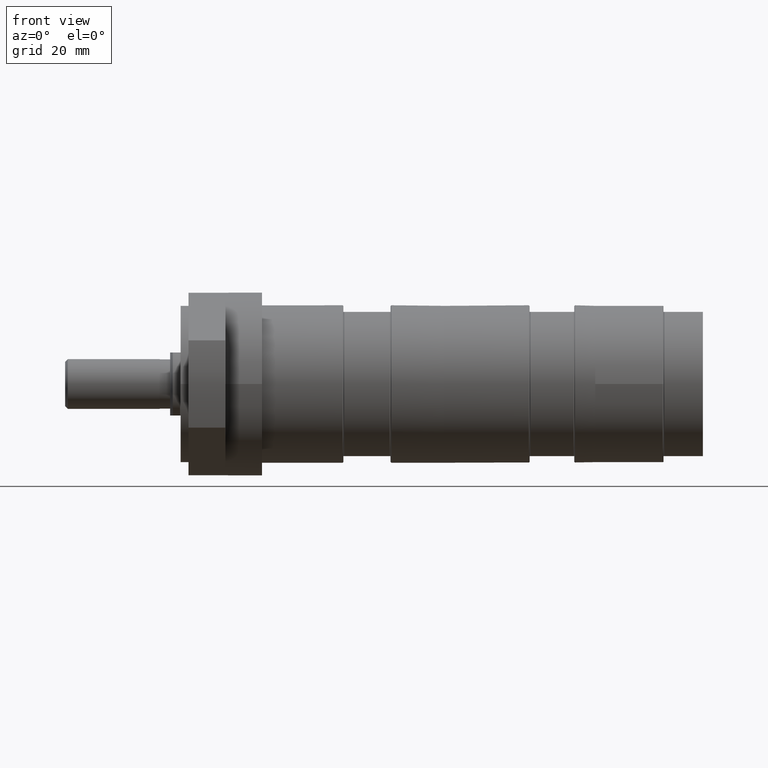
[diagram: clean part render]
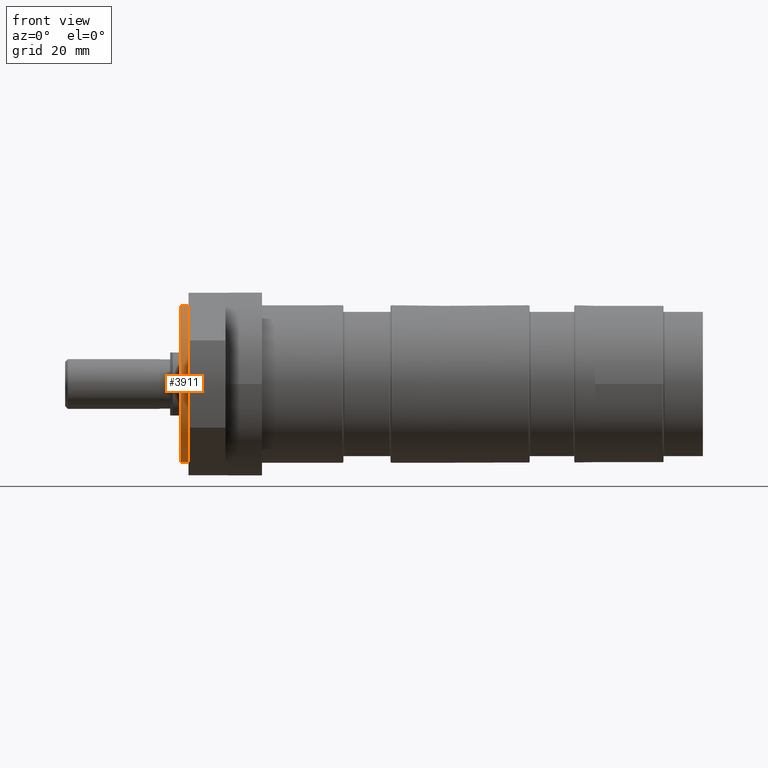
[diagram: same view with one face highlighted and labeled with its STEP entity id]
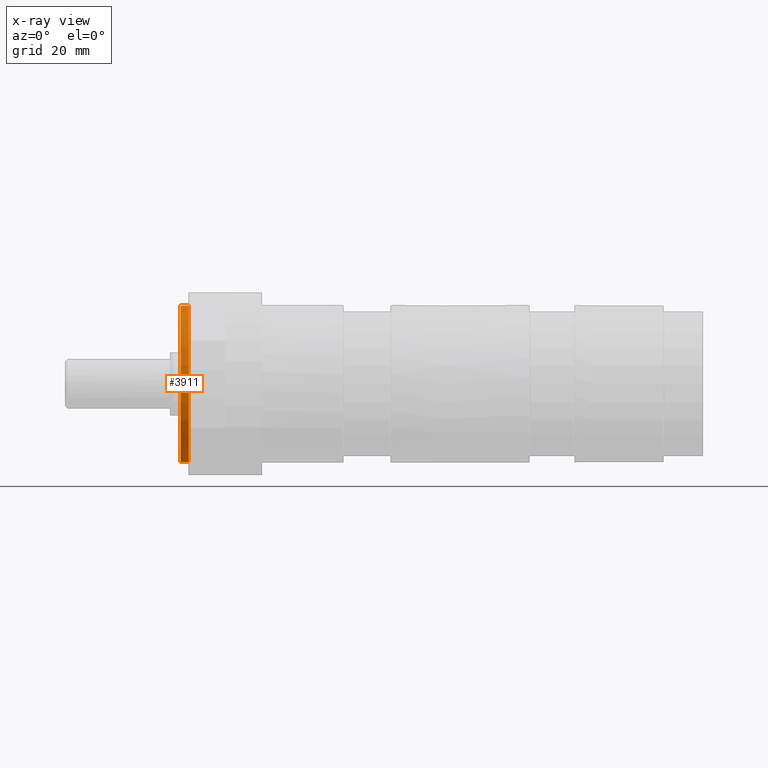
[diagram: x-ray of the same camera — body ghosted, the highlighted face saturated]
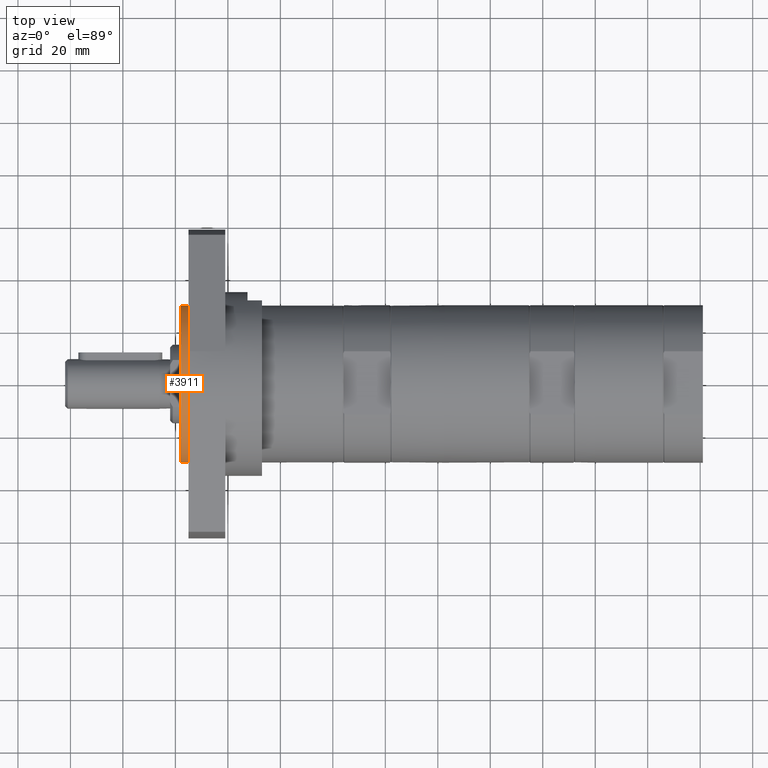
[diagram: same view with one face highlighted and labeled with its STEP entity id]
A machine part, front view. The second image highlights one B-rep face of the part: STEP entity #3911.
The next image is the same camera in x-ray: the body ghosted, the highlighted face saturated — about 0% of this face is hidden behind the body in this view.
A second angle (top view) of the same face is appended — the face is thin or edge-on in the first view.
In plain terms, the highlighted cylindrical surface (bore or boss wall) has radius 30 mm, axis along (1, 0, -0).
Its self-contained STEP definition (entity closure, byte-faithful):
#367=LINE('',#5780,#676);
#676=VECTOR('',#4622,30.);
#982=CYLINDRICAL_SURFACE('',#4169,30.);
#1035=FACE_OUTER_BOUND('',#1254,.T.);
#1254=EDGE_LOOP('',(#2677,#2678,#2679,#2680,#2681,#2682));
#1504=CIRCLE('',#4170,30.);
#1505=CIRCLE('',#4171,30.);
#1506=CIRCLE('',#4172,30.);
#1507=CIRCLE('',#4173,30.);
#1707=VERTEX_POINT('',#5775);
#1708=VERTEX_POINT('',#5776);
#1709=VERTEX_POINT('',#5779);
#1710=VERTEX_POINT('',#5781);
#2092=EDGE_CURVE('',#1707,#1708,#1504,.T.);
#2093=EDGE_CURVE('',#1708,#1707,#1505,.T.);
#2094=EDGE_CURVE('',#1708,#1709,#367,.T.);
#2095=EDGE_CURVE('',#1709,#1710,#1506,.T.);
#2096=EDGE_CURVE('',#1710,#1709,#1507,.T.);
#2677=ORIENTED_EDGE('',*,*,#2092,.F.);
#2678=ORIENTED_EDGE('',*,*,#2093,.F.);
#2679=ORIENTED_EDGE('',*,*,#2094,.T.);
#2680=ORIENTED_EDGE('',*,*,#2095,.T.);
#2681=ORIENTED_EDGE('',*,*,#2096,.T.);
#2682=ORIENTED_EDGE('',*,*,#2094,.F.);
#3911=ADVANCED_FACE('',(#1035),#982,.T.);
#4169=AXIS2_PLACEMENT_3D('',#5774,#4616,#4617);
#4170=AXIS2_PLACEMENT_3D('',#5777,#4618,#4619);
#4171=AXIS2_PLACEMENT_3D('',#5778,#4620,#4621);
#4172=AXIS2_PLACEMENT_3D('',#5782,#4623,#4624);
#4173=AXIS2_PLACEMENT_3D('',#5783,#4625,#4626);
#4616=DIRECTION('center_axis',(1.,1.6466799969687E-15,-1.20178028529764E-30));
#4617=DIRECTION('ref_axis',(-1.6466799969687E-15,1.,3.94430452610507E-31));
#4618=DIRECTION('center_axis',(1.,1.6466799969687E-15,-1.20178028529764E-30));
#4619=DIRECTION('ref_axis',(-1.6466799969687E-15,1.,3.94430452610507E-31));
#4620=DIRECTION('center_axis',(1.,1.6466799969687E-15,-1.20178028529764E-30));
#4621=DIRECTION('ref_axis',(-1.6466799969687E-15,1.,3.94430452610507E-31));
#4622=DIRECTION('',(-1.,-1.6466799969687E-15,1.20178028529764E-30));
#4623=DIRECTION('center_axis',(1.,1.6466799969687E-15,-1.20178028529764E-30));
#4624=DIRECTION('ref_axis',(-1.6466799969687E-15,1.,3.94430452610507E-31));
#4625=DIRECTION('center_axis',(1.,1.6466799969687E-15,-1.20178028529764E-30));
#4626=DIRECTION('ref_axis',(-1.6466799969687E-15,1.,3.94430452610507E-31));
#5774=CARTESIAN_POINT('Origin',(-156.5,2.47001999545317E-15,-1.80267042794661E-30));
#5775=CARTESIAN_POINT('',(-155.,30.,8.22757272242215E-30));
#5776=CARTESIAN_POINT('',(-155.,-30.,-3.67394039744207E-15));
#5777=CARTESIAN_POINT('Origin',(-155.,4.94003999090623E-15,-3.60534085589307E-30));
#5778=CARTESIAN_POINT('Origin',(-155.,4.94003999090623E-15,-3.60534085589307E-30));
#5779=CARTESIAN_POINT('',(-158.,-30.,-3.67394039744207E-15));
#5780=CARTESIAN_POINT('',(-156.5,-30.,-3.67394039744207E-15));
#5781=CARTESIAN_POINT('',(-158.,30.,1.18329135783151E-29));
#5782=CARTESIAN_POINT('Origin',(-158.,1.18329135783152E-28,-1.41443563742786E-43));
#5783=CARTESIAN_POINT('Origin',(-158.,1.18329135783152E-28,-1.41443563742786E-43));